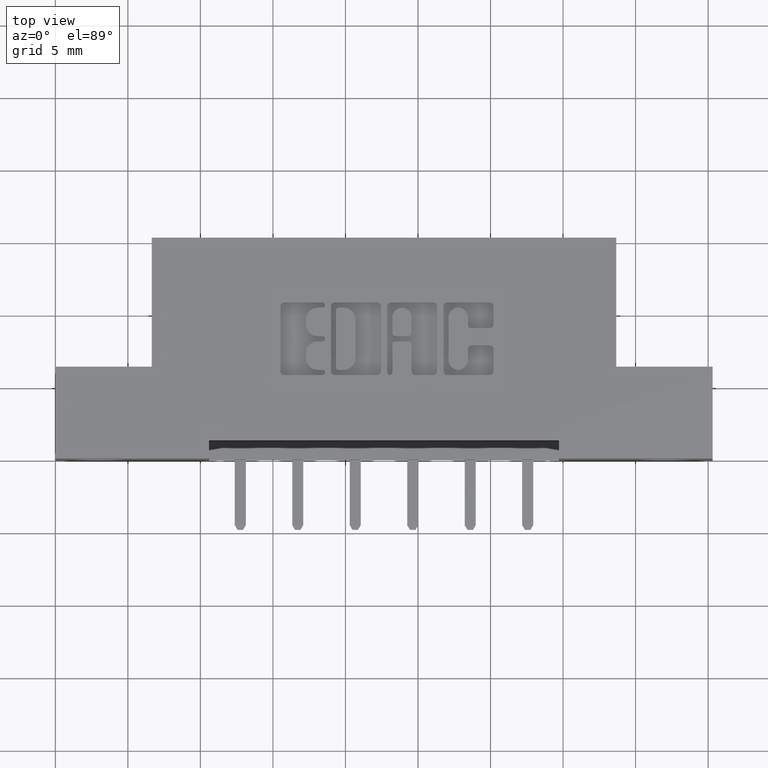
[diagram: clean part render]
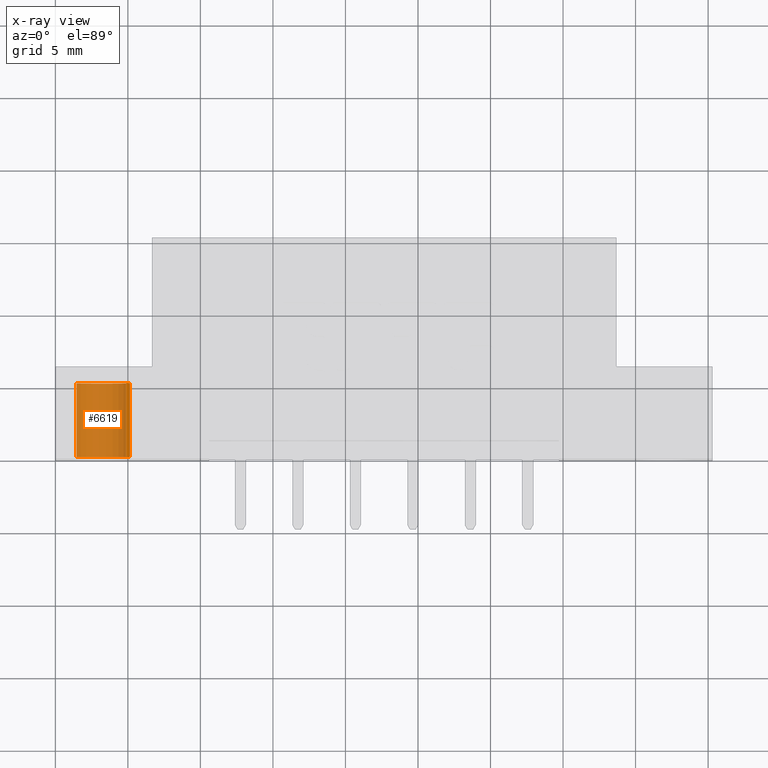
[diagram: x-ray — body ghosted, one internal face saturated and labeled with its STEP entity id]
A machine part, top view, then the same camera in x-ray: the body is ghosted and one INTERNAL B-rep face — a face not visible from any outside direction — is saturated and labeled: STEP entity #6619.
In plain terms, the highlighted cylindrical surface (edge-blend (fillet) strip) has radius 1.9685 mm, axis along (0, 1, -0).
Its self-contained STEP definition (entity closure, byte-faithful):
#479 = CARTESIAN_POINT ( 'NONE',  ( 9.491012693391986400E-018, 0.2400000000000000500, 0.07749999999999999900 ) ) ;
#541 = DIRECTION ( 'NONE',  ( 0.0000000000000000000, 1.000000000000000000, 0.0000000000000000000 ) ) ;
#1068 = VERTEX_POINT ( 'NONE', #8321 ) ;
#1394 = CARTESIAN_POINT ( 'NONE',  ( 9.491012693391986400E-018, 0.2400000000000000500, 0.07749999999999999900 ) ) ;
#1455 = DIRECTION ( 'NONE',  ( -0.0000000000000000000, -1.000000000000000000, -0.0000000000000000000 ) ) ;
#1679 = CARTESIAN_POINT ( 'NONE',  ( 0.0000000000000000000, 0.2400000000000000500, -0.07749999999999999900 ) ) ;
#2065 = CARTESIAN_POINT ( 'NONE',  ( 9.491012693391986400E-018, 0.04000000000000000100, 0.07749999999999999900 ) ) ;
#2465 = FACE_OUTER_BOUND ( 'NONE', #3064, .T. ) ;
#2722 = VERTEX_POINT ( 'NONE', #2065 ) ;
#2890 = ORIENTED_EDGE ( 'NONE', *, *, #4915, .T. ) ;
#3064 = EDGE_LOOP ( 'NONE', ( #5088, #8614, #2890, #3822 ) ) ;
#3664 = CIRCLE ( 'NONE', #4266, 0.07749999999999999900 ) ;
#3781 = EDGE_CURVE ( 'NONE', #8358, #2722, #8331, .T. ) ;
#3822 = ORIENTED_EDGE ( 'NONE', *, *, #6056, .F. ) ;
#3937 = DIRECTION ( 'NONE',  ( -0.0000000000000000000, -1.000000000000000000, -0.0000000000000000000 ) ) ;
#4115 = DIRECTION ( 'NONE',  ( 0.0000000000000000000, 1.000000000000000000, 0.0000000000000000000 ) ) ;
#4266 = AXIS2_PLACEMENT_3D ( 'NONE', #8561, #4115, #9285 ) ;
#4385 = VECTOR ( 'NONE', #1455, 39.37007874015748100 ) ;
#4756 = CARTESIAN_POINT ( 'NONE',  ( 0.0000000000000000000, 0.2400000000000000500, -0.07749999999999999900 ) ) ;
#4915 = EDGE_CURVE ( 'NONE', #2722, #1068, #3664, .T. ) ;
#5031 = CARTESIAN_POINT ( 'NONE',  ( 0.0000000000000000000, 0.2400000000000000500, 0.0000000000000000000 ) ) ;
#5088 = ORIENTED_EDGE ( 'NONE', *, *, #7137, .F. ) ;
#5426 = LINE ( 'NONE', #4756, #9084 ) ;
#5442 = VERTEX_POINT ( 'NONE', #1679 ) ;
#5516 = DIRECTION ( 'NONE',  ( -0.0000000000000000000, -1.000000000000000000, -0.0000000000000000000 ) ) ;
#5779 = DIRECTION ( 'NONE',  ( 0.0000000000000000000, 0.0000000000000000000, 1.000000000000000000 ) ) ;
#6056 = EDGE_CURVE ( 'NONE', #5442, #1068, #5426, .T. ) ;
#6090 = AXIS2_PLACEMENT_3D ( 'NONE', #5031, #541, #5779 ) ;
#6619 = ADVANCED_FACE ( 'NONE', ( #2465 ), #8163, .T. ) ;
#6948 = AXIS2_PLACEMENT_3D ( 'NONE', #9095, #3937, #8343 ) ;
#7137 = EDGE_CURVE ( 'NONE', #8358, #5442, #8265, .T. ) ;
#8163 = CYLINDRICAL_SURFACE ( 'NONE', #6948, 0.07749999999999999900 ) ;
#8265 = CIRCLE ( 'NONE', #6090, 0.07749999999999999900 ) ;
#8321 = CARTESIAN_POINT ( 'NONE',  ( 0.0000000000000000000, 0.04000000000000000100, -0.07749999999999999900 ) ) ;
#8331 = LINE ( 'NONE', #1394, #4385 ) ;
#8343 = DIRECTION ( 'NONE',  ( 0.0000000000000000000, 0.0000000000000000000, -1.000000000000000000 ) ) ;
#8358 = VERTEX_POINT ( 'NONE', #479 ) ;
#8561 = CARTESIAN_POINT ( 'NONE',  ( 0.0000000000000000000, 0.04000000000000000100, 0.0000000000000000000 ) ) ;
#8614 = ORIENTED_EDGE ( 'NONE', *, *, #3781, .T. ) ;
#9084 = VECTOR ( 'NONE', #5516, 39.37007874015748100 ) ;
#9095 = CARTESIAN_POINT ( 'NONE',  ( 0.0000000000000000000, 0.2400000000000000500, 0.0000000000000000000 ) ) ;
#9285 = DIRECTION ( 'NONE',  ( 0.0000000000000000000, 0.0000000000000000000, 1.000000000000000000 ) ) ;